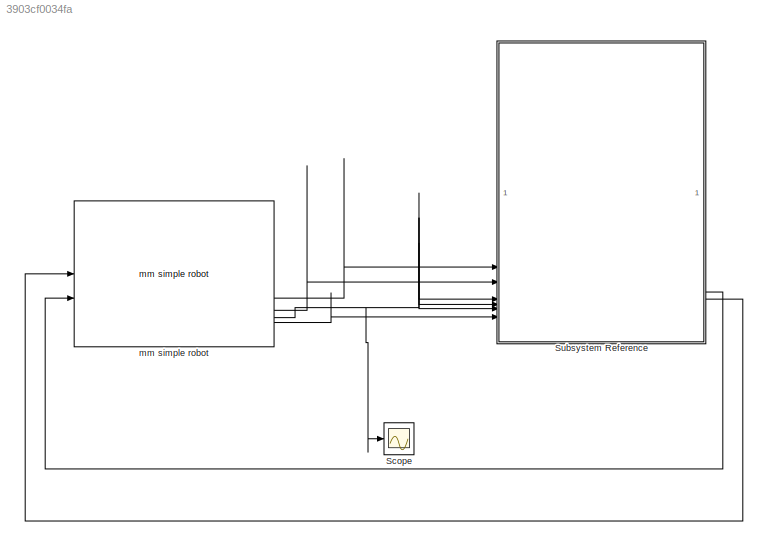
MODEL slx_3903cf0034fa
KIND model
CONFIG AbsTol = auto
CONFIG EnableMultiTasking = off
CONFIG FixedStep = auto
CONFIG MaxStep = auto
CONFIG MinStep = auto
CONFIG RelTol = 1e-3
CONFIG SampleTimeConstraint = Unconstrained
CONFIG SolverName = VariableStepAuto
CONFIG StartTime = 0.0
CONFIG StopTime = 8
BLOCK [Scope] Scope
  ActiveDisplayYMaximum = 0.60694432759256145
  ActiveDisplayYMinimum = -0.33985067422182658
  DataLoggingVariableName = ScopeData2
  Floating = off
  GraphicalSettings = {"Style":{"BackgroundColor":[0.12941176470588237,0.12941176470588237,0.12941176470588237],"AxesColor":[0.07058823529411765,0.07058823529411765,0.07058823529411765],"LabelsColor":[0.8509803921568627,0.8509803921568627,0.8509803921568627],"PreserveColors":false,"Visible":[true,true,true],"LineStyle":["-","-","-"],"LineWidth":[1.5,1.5,1.5],"BarWidth":[0.9,0.9,0.9],"LineColor":["auto","auto","auto"],"...<+2577ch>
  MultipleDisplayCache = [{"MaxYLimMag":0.533125,"MaxYLimReal":0.60694432759256145,"MinYLimMag":0,"MinYLimReal":-0.33985067422182658,"PlotAsMagnitudePhase":false,"ShowGrid":true,"ShowLegend":false,"Title":"%<SignalLabel>","YLabel":""}]
  NumInputPorts = 1
  ScopeFrameLocation = window
  WasSavedAsWebScope = on
  WindowPosition = [1.000000,49.000000,1920.000000,1009.000000,]
BLOCK [SubSystem] Subsystem Reference
  PortSchema = {"entries":[{"content":{"sides":[{"content":{"connectorIds":["In1","In2","In3","In4","In5","In6","In7","In8","In9","In10","In11","In12"]},"type":"ConnectorPlacement.EquallySpacedRectSide","uuid":"2a24a9cc-efbc-4221-9b12-a373555e389f"},{"content":{"connectorIds":["Out1","Out2","Out3","Out4","Out6","Out5","Out7","Out8","Out9","Out10","Out11"],"side":"RIGHT"},"type":"ConnectorPlacement.EquallySpacedR...<+363ch>
  ReferencedSubsystem = StudentTemplateCopyTwo
BLOCK [Reference] mm simple robot  REF=mmuct_lib/mm simple robot  (lib defined in slx_2620ace7ce61, slx_448e9b5fb939)
  SourceBlock = mmuct_lib/mm simple robot
LINE Subsystem Reference:5 -> mm simple robot:2
LINE Subsystem Reference:6 -> mm simple robot:1
LINE mm simple robot:2 -> Subsystem Reference:3
LINE mm simple robot:3 -> Subsystem Reference:4
NET mm simple robot:4 -> Scope:1, Subsystem Reference:6, Subsystem Reference:7, Subsystem Reference:8
LINE mm simple robot:5 -> Subsystem Reference:11
note: NET lines group one-source signal fan-out (src -> all destinations, sorted); 1:1 wires keep LINE
